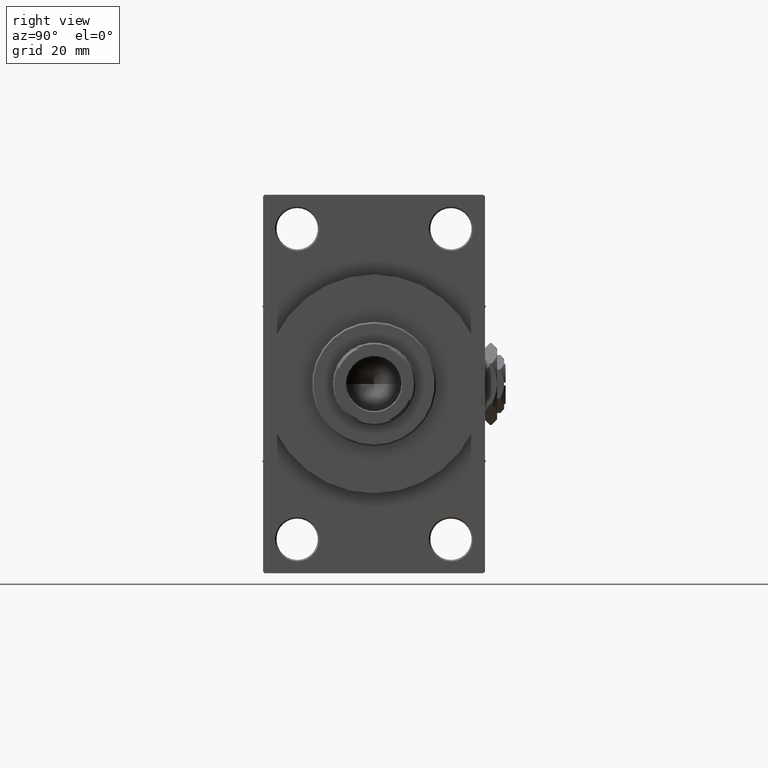
[diagram: clean part render]
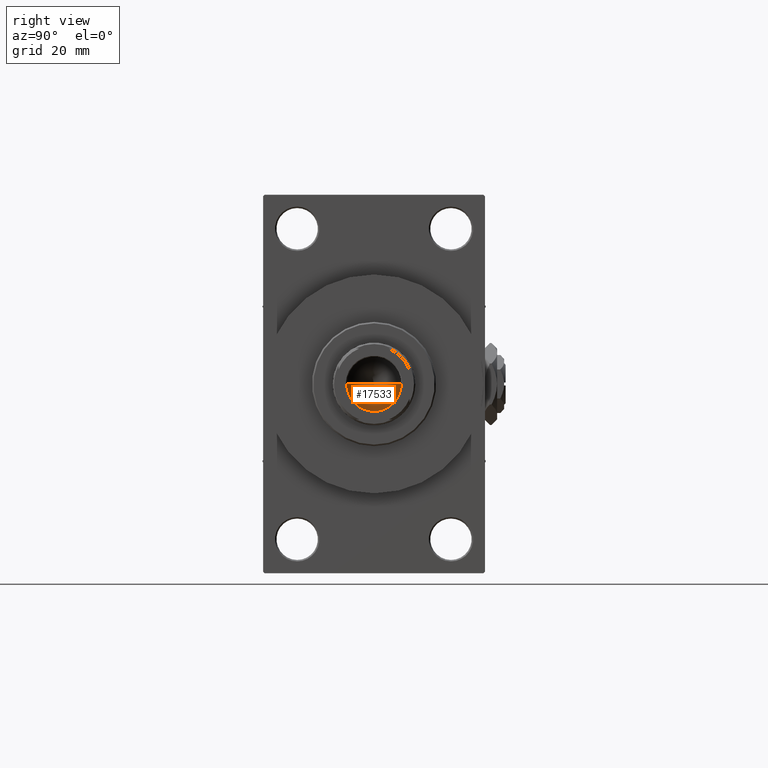
[diagram: same view with one face highlighted and labeled with its STEP entity id]
A machine part, right view. The second image highlights one B-rep face of the part: STEP entity #17533.
In plain terms, the highlighted conical surface has half-angle 59 deg.
Its self-contained STEP definition (entity closure, byte-faithful):
#633 = VERTEX_POINT ( 'NONE', #44665 ) ;
#702 = CONICAL_SURFACE ( 'NONE', #28339, 9.249999999999992895, 1.029744258676653423 ) ;
#933 = CARTESIAN_POINT ( 'NONE',  ( 9.249999999999992895, 0.000000000000000000, 107.0000000000000142 ) ) ;
#2704 = EDGE_CURVE ( 'NONE', #633, #26407, #45970, .T. ) ;
#4472 = DIRECTION ( 'NONE',  ( -0.8571673007021117785, 1.049727191138617956E-16, 0.5150380749100550437 ) ) ;
#6600 = DIRECTION ( 'NONE',  ( 1.000000000000000000, 0.000000000000000000, 0.000000000000000000 ) ) ;
#7351 = VECTOR ( 'NONE', #4472, 1000.000000000000000 ) ;
#10228 = VERTEX_POINT ( 'NONE', #37439 ) ;
#11111 = CARTESIAN_POINT ( 'NONE',  ( 9.249999999999992895, 0.000000000000000000, 107.0000000000000142 ) ) ;
#12145 = LINE ( 'NONE', #38861, #7351 ) ;
#15385 = FACE_OUTER_BOUND ( 'NONE', #30821, .T. ) ;
#15620 = DIRECTION ( 'NONE',  ( -0.000000000000000000, -0.000000000000000000, 1.000000000000000000 ) ) ;
#16022 = DIRECTION ( 'NONE',  ( 0.8571673007021117785, 0.000000000000000000, 0.5150380749100550437 ) ) ;
#17533 = ADVANCED_FACE ( 'NONE', ( #15385 ), #702, .F. ) ;
#19076 = VECTOR ( 'NONE', #16022, 1000.000000000000000 ) ;
#25392 = CARTESIAN_POINT ( 'NONE',  ( 0.000000000000000000, 0.000000000000000000, 107.0000000000000142 ) ) ;
#26407 = VERTEX_POINT ( 'NONE', #11111 ) ;
#27243 = CARTESIAN_POINT ( 'NONE',  ( 0.000000000000000000, 0.000000000000000000, 107.0000000000000142 ) ) ;
#28339 = AXIS2_PLACEMENT_3D ( 'NONE', #27243, #15620, #45813 ) ;
#30006 = EDGE_CURVE ( 'NONE', #633, #10228, #12145, .T. ) ;
#30821 = EDGE_LOOP ( 'NONE', ( #32730, #48974, #44594 ) ) ;
#32730 = ORIENTED_EDGE ( 'NONE', *, *, #30006, .F. ) ;
#36017 = CIRCLE ( 'NONE', #42351, 9.249999999999992895 ) ;
#36431 = EDGE_CURVE ( 'NONE', #26407, #10228, #36017, .T. ) ;
#37439 = CARTESIAN_POINT ( 'NONE',  ( -9.249999999999992895, 1.132798289211300712E-15, 107.0000000000000142 ) ) ;
#38861 = CARTESIAN_POINT ( 'NONE',  ( -9.249999999999992895, 1.132798289211300712E-15, 107.0000000000000142 ) ) ;
#40497 = DIRECTION ( 'NONE',  ( -0.000000000000000000, -0.000000000000000000, 1.000000000000000000 ) ) ;
#42351 = AXIS2_PLACEMENT_3D ( 'NONE', #25392, #40497, #6600 ) ;
#44594 = ORIENTED_EDGE ( 'NONE', *, *, #36431, .T. ) ;
#44665 = CARTESIAN_POINT ( 'NONE',  ( -9.769621978240258809E-15, 0.000000000000000000, 101.4420392739950785 ) ) ;
#45813 = DIRECTION ( 'NONE',  ( 1.000000000000000000, 0.000000000000000000, 0.000000000000000000 ) ) ;
#45970 = LINE ( 'NONE', #933, #19076 ) ;
#48974 = ORIENTED_EDGE ( 'NONE', *, *, #2704, .T. ) ;